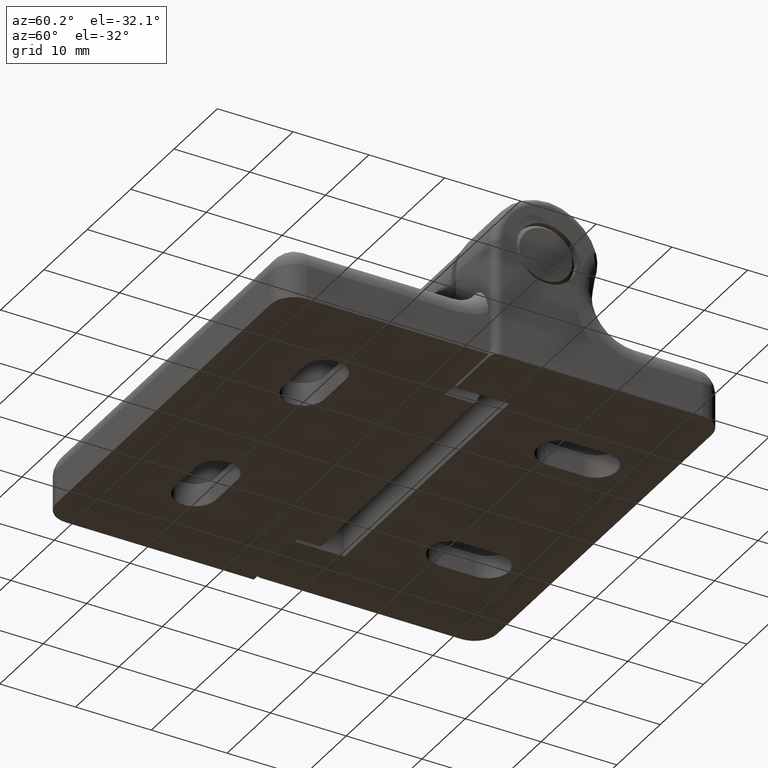
[diagram: clean part render]
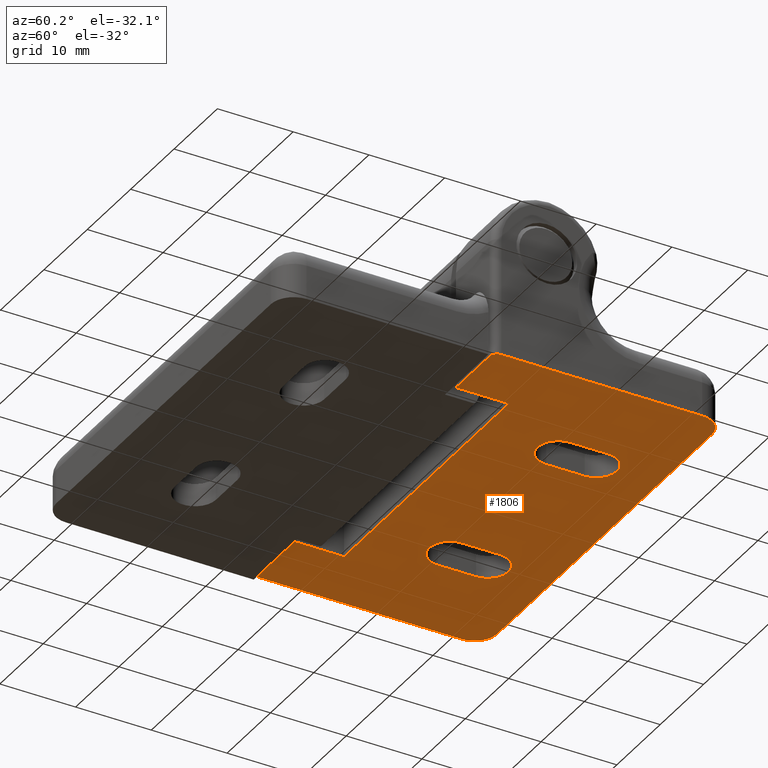
[diagram: same view with one face highlighted and labeled with its STEP entity id]
A machine part, auxiliary view. The second image highlights one B-rep face of the part: STEP entity #1806.
In plain terms, the highlighted planar face has unit normal (0, 0, 1).
Its self-contained STEP definition (entity closure, byte-faithful):
#56=PLANE('',#1954);
#115=FACE_BOUND('',#267,.T.);
#116=FACE_BOUND('',#268,.T.);
#157=FACE_OUTER_BOUND('',#266,.T.);
#266=EDGE_LOOP('',(#1315,#1316,#1317,#1318,#1319,#1320,#1321,#1322,#1323,
#1324,#1325,#1326));
#267=EDGE_LOOP('',(#1327,#1328,#1329,#1330));
#268=EDGE_LOOP('',(#1331,#1332,#1333,#1334));
#395=LINE('',#2864,#540);
#398=LINE('',#2870,#543);
#400=LINE('',#2875,#545);
#414=LINE('',#2902,#559);
#417=LINE('',#2911,#562);
#418=LINE('',#2913,#563);
#419=LINE('',#2914,#564);
#420=LINE('',#2918,#565);
#421=LINE('',#2922,#566);
#422=LINE('',#2926,#567);
#423=LINE('',#2929,#568);
#424=LINE('',#2931,#569);
#540=VECTOR('',#2230,38.);
#543=VECTOR('',#2235,7.75000000000001);
#545=VECTOR('',#2239,7.75);
#559=VECTOR('',#2263,5.0000692032094);
#562=VECTOR('',#2274,5.02759472850249);
#563=VECTOR('',#2277,7.);
#564=VECTOR('',#2278,7.);
#565=VECTOR('',#2281,26.5);
#566=VECTOR('',#2284,49.5);
#567=VECTOR('',#2287,26.5);
#568=VECTOR('',#2290,5.04424959187892);
#569=VECTOR('',#2291,5.0000000539646);
#661=CIRCLE('',#1903,2.75);
#686=CIRCLE('',#1948,2.75006922402703);
#687=CIRCLE('',#1951,2.75);
#689=CIRCLE('',#1955,1.);
#690=CIRCLE('',#1956,3.);
#691=CIRCLE('',#1957,3.);
#692=CIRCLE('',#1958,1.);
#693=CIRCLE('',#1959,2.75017944615839);
#766=VERTEX_POINT('',#2693);
#767=VERTEX_POINT('',#2694);
#814=VERTEX_POINT('',#2861);
#815=VERTEX_POINT('',#2863);
#816=VERTEX_POINT('',#2867);
#817=VERTEX_POINT('',#2869);
#818=VERTEX_POINT('',#2873);
#819=VERTEX_POINT('',#2874);
#822=VERTEX_POINT('',#2889);
#825=VERTEX_POINT('',#2894);
#826=VERTEX_POINT('',#2898);
#828=VERTEX_POINT('',#2904);
#830=VERTEX_POINT('',#2915);
#831=VERTEX_POINT('',#2917);
#832=VERTEX_POINT('',#2919);
#833=VERTEX_POINT('',#2921);
#834=VERTEX_POINT('',#2923);
#835=VERTEX_POINT('',#2925);
#836=VERTEX_POINT('',#2928);
#837=VERTEX_POINT('',#2930);
#940=EDGE_CURVE('',#766,#767,#661,.T.);
#998=EDGE_CURVE('',#814,#815,#395,.T.);
#1001=EDGE_CURVE('',#816,#817,#398,.T.);
#1003=EDGE_CURVE('',#818,#819,#400,.T.);
#1016=EDGE_CURVE('',#825,#822,#686,.T.);
#1019=EDGE_CURVE('',#822,#826,#414,.T.);
#1020=EDGE_CURVE('',#826,#828,#687,.T.);
#1024=EDGE_CURVE('',#828,#825,#417,.T.);
#1025=EDGE_CURVE('',#815,#816,#418,.T.);
#1026=EDGE_CURVE('',#814,#819,#419,.T.);
#1027=EDGE_CURVE('',#818,#830,#689,.T.);
#1028=EDGE_CURVE('',#831,#830,#420,.T.);
#1029=EDGE_CURVE('',#831,#832,#690,.T.);
#1030=EDGE_CURVE('',#833,#832,#421,.T.);
#1031=EDGE_CURVE('',#833,#834,#691,.T.);
#1032=EDGE_CURVE('',#835,#834,#422,.T.);
#1033=EDGE_CURVE('',#835,#817,#692,.T.);
#1034=EDGE_CURVE('',#836,#766,#423,.T.);
#1035=EDGE_CURVE('',#767,#837,#424,.T.);
#1036=EDGE_CURVE('',#837,#836,#693,.T.);
#1315=ORIENTED_EDGE('',*,*,#1001,.F.);
#1316=ORIENTED_EDGE('',*,*,#1025,.F.);
#1317=ORIENTED_EDGE('',*,*,#998,.F.);
#1318=ORIENTED_EDGE('',*,*,#1026,.T.);
#1319=ORIENTED_EDGE('',*,*,#1003,.F.);
#1320=ORIENTED_EDGE('',*,*,#1027,.T.);
#1321=ORIENTED_EDGE('',*,*,#1028,.F.);
#1322=ORIENTED_EDGE('',*,*,#1029,.T.);
#1323=ORIENTED_EDGE('',*,*,#1030,.F.);
#1324=ORIENTED_EDGE('',*,*,#1031,.T.);
#1325=ORIENTED_EDGE('',*,*,#1032,.F.);
#1326=ORIENTED_EDGE('',*,*,#1033,.T.);
#1327=ORIENTED_EDGE('',*,*,#1034,.T.);
#1328=ORIENTED_EDGE('',*,*,#940,.T.);
#1329=ORIENTED_EDGE('',*,*,#1035,.T.);
#1330=ORIENTED_EDGE('',*,*,#1036,.T.);
#1331=ORIENTED_EDGE('',*,*,#1016,.F.);
#1332=ORIENTED_EDGE('',*,*,#1024,.F.);
#1333=ORIENTED_EDGE('',*,*,#1020,.F.);
#1334=ORIENTED_EDGE('',*,*,#1019,.F.);
#1806=ADVANCED_FACE('',(#157,#115,#116),#56,.F.);
#1903=AXIS2_PLACEMENT_3D('',#2695,#2126,#2127);
#1948=AXIS2_PLACEMENT_3D('',#2896,#2257,#2258);
#1951=AXIS2_PLACEMENT_3D('',#2905,#2266,#2267);
#1954=AXIS2_PLACEMENT_3D('',#2912,#2275,#2276);
#1955=AXIS2_PLACEMENT_3D('',#2916,#2279,#2280);
#1956=AXIS2_PLACEMENT_3D('',#2920,#2282,#2283);
#1957=AXIS2_PLACEMENT_3D('',#2924,#2285,#2286);
#1958=AXIS2_PLACEMENT_3D('',#2927,#2288,#2289);
#1959=AXIS2_PLACEMENT_3D('',#2932,#2292,#2293);
#2126=DIRECTION('center_axis',(0.,0.,1.));
#2127=DIRECTION('ref_axis',(1.,0.,0.));
#2230=DIRECTION('',(1.,0.,0.));
#2235=DIRECTION('',(1.,0.,0.));
#2239=DIRECTION('',(1.,0.,0.));
#2257=DIRECTION('center_axis',(0.,0.,-1.));
#2258=DIRECTION('ref_axis',(1.,0.,0.));
#2263=DIRECTION('',(0.,-1.,0.));
#2266=DIRECTION('center_axis',(0.,0.,-1.));
#2267=DIRECTION('ref_axis',(1.,0.,0.));
#2274=DIRECTION('',(0.,1.,0.));
#2275=DIRECTION('center_axis',(0.,0.,1.));
#2276=DIRECTION('ref_axis',(1.,0.,0.));
#2277=DIRECTION('',(0.,-1.,0.));
#2278=DIRECTION('',(0.,-1.,0.));
#2279=DIRECTION('center_axis',(0.,0.,-1.));
#2280=DIRECTION('ref_axis',(1.,0.,0.));
#2281=DIRECTION('',(0.,-1.,0.));
#2282=DIRECTION('center_axis',(0.,0.,-1.));
#2283=DIRECTION('ref_axis',(1.,0.,0.));
#2284=DIRECTION('',(-1.,0.,0.));
#2285=DIRECTION('center_axis',(0.,0.,-1.));
#2286=DIRECTION('ref_axis',(1.,0.,0.));
#2287=DIRECTION('',(0.,1.,0.));
#2288=DIRECTION('center_axis',(0.,0.,-1.));
#2289=DIRECTION('ref_axis',(1.,0.,0.));
#2290=DIRECTION('',(0.,-1.,0.));
#2291=DIRECTION('',(0.,1.,0.));
#2292=DIRECTION('center_axis',(0.,0.,1.));
#2293=DIRECTION('ref_axis',(1.,0.,0.));
#2693=CARTESIAN_POINT('',(19.7501794461584,32.2181345554533,0.497772930929919));
#2694=CARTESIAN_POINT('',(25.2501794344507,32.2181345014887,0.497772930929919));
#2695=CARTESIAN_POINT('Origin',(22.5001794403037,32.2179551092949,0.497772930929919));
#2861=CARTESIAN_POINT('',(-9.,21.9677756572818,0.497772930929919));
#2863=CARTESIAN_POINT('',(29.,21.9677756572818,0.497772930929919));
#2864=CARTESIAN_POINT('',(-9.,21.9677756572818,0.497772930929919));
#2867=CARTESIAN_POINT('',(29.,14.9677756572819,0.497772930929919));
#2869=CARTESIAN_POINT('',(36.75,14.9677756572819,0.497772930929919));
#2870=CARTESIAN_POINT('',(29.,14.9677756572819,0.497772930929919));
#2873=CARTESIAN_POINT('',(-16.75,14.9677756572819,0.497772930929919));
#2874=CARTESIAN_POINT('',(-9.,14.9677756572819,0.497772930929919));
#2875=CARTESIAN_POINT('',(-16.75,14.9677756572819,0.497772930929919));
#2889=CARTESIAN_POINT('',(0.249930774230435,37.2179141044647,0.497772930929919));
#2894=CARTESIAN_POINT('',(-5.25006922402703,37.2454396089401,0.497772930929919));
#2896=CARTESIAN_POINT('Origin',(-2.50013844892533,37.2178448795667,0.497772930929919));
#2898=CARTESIAN_POINT('',(0.249930774811278,32.2178449012553,0.497772930929919));
#2902=CARTESIAN_POINT('',(0.249930774230428,37.2179141044647,0.497772930929919));
#2904=CARTESIAN_POINT('',(-5.2500692248983,32.2178448804376,0.497772930929919));
#2905=CARTESIAN_POINT('Origin',(-2.5000692248983,32.2178448804376,0.497772930929919));
#2911=CARTESIAN_POINT('',(-5.25006922402703,32.2178448804376,0.497772930929919));
#2912=CARTESIAN_POINT('Origin',(-20.525,13.4427756572819,0.497772930929919));
#2913=CARTESIAN_POINT('',(29.,21.9677756572818,0.497772930929919));
#2914=CARTESIAN_POINT('',(-9.,21.9677756572818,0.497772930929919));
#2915=CARTESIAN_POINT('',(-17.75,15.9677756572818,0.497772930929919));
#2916=CARTESIAN_POINT('Origin',(-16.75,15.9677756572818,0.497772930929919));
#2917=CARTESIAN_POINT('',(-17.75,42.4677756572818,0.497772930929919));
#2918=CARTESIAN_POINT('',(-17.75,42.4677756572818,0.497772930929919));
#2919=CARTESIAN_POINT('',(-14.75,45.4677756572818,0.497772930929919));
#2920=CARTESIAN_POINT('Origin',(-14.75,42.4677756572818,0.497772930929919));
#2921=CARTESIAN_POINT('',(34.75,45.4677756572818,0.497772930929919));
#2922=CARTESIAN_POINT('',(34.75,45.4677756572818,0.497772930929919));
#2923=CARTESIAN_POINT('',(37.75,42.4677756572818,0.497772930929919));
#2924=CARTESIAN_POINT('Origin',(34.75,42.4677756572818,0.497772930929919));
#2925=CARTESIAN_POINT('',(37.75,15.9677756572818,0.497772930929919));
#2926=CARTESIAN_POINT('',(37.75,15.9677756572818,0.497772930929919));
#2927=CARTESIAN_POINT('Origin',(36.75,15.9677756572818,0.497772930929919));
#2928=CARTESIAN_POINT('',(19.7501794461584,37.2623841473323,0.497772930929919));
#2929=CARTESIAN_POINT('',(19.7501794461583,37.2623841473323,0.497772930929919));
#2930=CARTESIAN_POINT('',(25.250179434449,37.2181345554533,0.497772930929919));
#2931=CARTESIAN_POINT('',(25.250179434449,32.2179551092949,0.497772930929919));
#2932=CARTESIAN_POINT('Origin',(22.4999999941453,37.2179551034402,0.497772930929919));